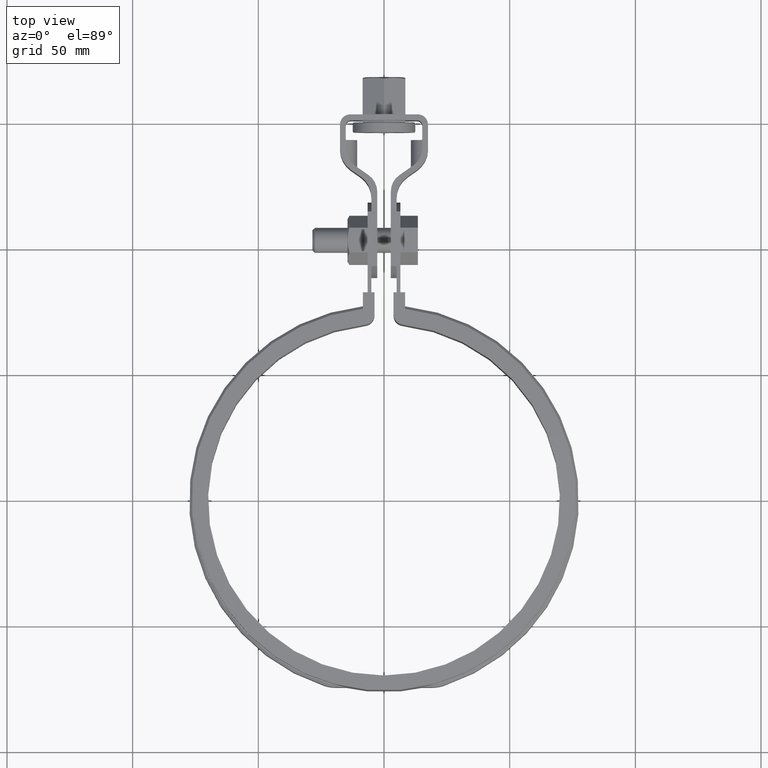
[diagram: clean part render]
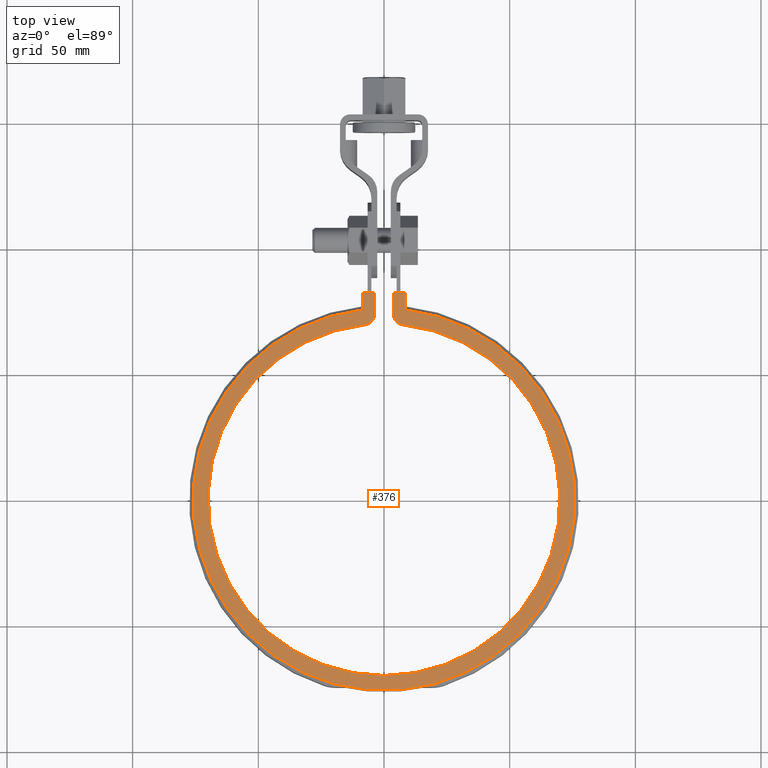
[diagram: same view with one face highlighted and labeled with its STEP entity id]
A machine part, top view. The second image highlights one B-rep face of the part: STEP entity #376.
In plain terms, the highlighted planar face has unit normal (0, 0, 1).
Its self-contained STEP definition (entity closure, byte-faithful):
#376 = ADVANCED_FACE( '', ( #625 ), #626, .T. );
#625 = FACE_OUTER_BOUND( '', #1760, .T. );
#626 = PLANE( '', #1761 );
#1760 = EDGE_LOOP( '', ( #4041, #4042, #4043, #4044, #4045, #4046, #4047, #4048, #4049, #4050 ) );
#1761 = AXIS2_PLACEMENT_3D( '', #4051, #4052, #4053 );
#4041 = ORIENTED_EDGE( '', *, *, #5046, .T. );
#4042 = ORIENTED_EDGE( '', *, *, #5038, .T. );
#4043 = ORIENTED_EDGE( '', *, *, #5096, .T. );
#4044 = ORIENTED_EDGE( '', *, *, #5107, .T. );
#4045 = ORIENTED_EDGE( '', *, *, #5164, .T. );
#4046 = ORIENTED_EDGE( '', *, *, #5082, .T. );
#4047 = ORIENTED_EDGE( '', *, *, #5165, .T. );
#4048 = ORIENTED_EDGE( '', *, *, #5166, .T. );
#4049 = ORIENTED_EDGE( '', *, *, #5167, .T. );
#4050 = ORIENTED_EDGE( '', *, *, #5168, .T. );
#4051 = CARTESIAN_POINT( '', ( 0.000000000000000, 0.000000000000000, 1.50000000000000 ) );
#4052 = DIRECTION( '', ( 0.000000000000000, 0.000000000000000, 1.00000000000000 ) );
#4053 = DIRECTION( '', ( 0.000000000000000, 1.00000000000000, 0.000000000000000 ) );
#5038 = EDGE_CURVE( '', #5558, #5559, #5560, .T. );
#5046 = EDGE_CURVE( '', #5574, #5558, #5575, .T. );
#5082 = EDGE_CURVE( '', #5637, #5638, #5639, .T. );
#5096 = EDGE_CURVE( '', #5559, #5664, #5666, .T. );
#5107 = EDGE_CURVE( '', #5664, #5685, #5687, .T. );
#5164 = EDGE_CURVE( '', #5685, #5637, #5774, .T. );
#5165 = EDGE_CURVE( '', #5638, #5775, #5776, .T. );
#5166 = EDGE_CURVE( '', #5775, #5777, #5778, .T. );
#5167 = EDGE_CURVE( '', #5777, #5779, #5780, .T. );
#5168 = EDGE_CURVE( '', #5779, #5574, #5781, .T. );
#5558 = VERTEX_POINT( '', #7263 );
#5559 = VERTEX_POINT( '', #7264 );
#5560 = LINE( '', #7265, #7266 );
#5574 = VERTEX_POINT( '', #7287 );
#5575 = LINE( '', #7288, #7289 );
#5637 = VERTEX_POINT( '', #8148 );
#5638 = VERTEX_POINT( '', #8149 );
#5639 = LINE( '', #8150, #8151 );
#5664 = VERTEX_POINT( '', #8192 );
#5666 = LINE( '', #8195, #8196 );
#5685 = VERTEX_POINT( '', #8224 );
#5687 = CIRCLE( '', #8227, 76.0000000000000 );
#5774 = LINE( '', #8452, #8453 );
#5775 = VERTEX_POINT( '', #8454 );
#5776 = LINE( '', #8455, #8456 );
#5777 = VERTEX_POINT( '', #8457 );
#5778 = CIRCLE( '', #8458, 4.00000000000000 );
#5779 = VERTEX_POINT( '', #8459 );
#5780 = CIRCLE( '', #8460, 70.0000000000000 );
#5781 = CIRCLE( '', #8461, 4.00000000000000 );
#7263 = CARTESIAN_POINT( '', ( -3.80000000000000, 82.5000000000000, 1.50000000000000 ) );
#7264 = CARTESIAN_POINT( '', ( -8.40000000000002, 82.5000000000000, 1.50000000000000 ) );
#7265 = CARTESIAN_POINT( '', ( -3.80000000000000, 82.5000000000000, 1.50000000000000 ) );
#7266 = VECTOR( '', #9378, 1000.00000000000 );
#7287 = CARTESIAN_POINT( '', ( -3.80000000000000, 73.5877707231304, 1.50000000000000 ) );
#7288 = CARTESIAN_POINT( '', ( -3.80000000000000, 73.5877707231304, 1.50000000000000 ) );
#7289 = VECTOR( '', #9386, 1000.00000000000 );
#8148 = CARTESIAN_POINT( '', ( 8.39999999999999, 82.5000000000000, 1.50000000000000 ) );
#8149 = CARTESIAN_POINT( '', ( 3.80000000000003, 82.5000000000000, 1.50000000000000 ) );
#8150 = CARTESIAN_POINT( '', ( 8.40000000000002, 82.5000000000000, 1.50000000000000 ) );
#8151 = VECTOR( '', #9406, 1000.00000000000 );
#8192 = CARTESIAN_POINT( '', ( -8.40000000000000, 75.5343630409366, 1.50000000000000 ) );
#8195 = CARTESIAN_POINT( '', ( -8.40000000000000, 82.5000000000000, 1.50000000000000 ) );
#8196 = VECTOR( '', #9418, 1000.00000000000 );
#8224 = CARTESIAN_POINT( '', ( 8.39999999999992, 75.5343630409366, 1.50000000000000 ) );
#8227 = AXIS2_PLACEMENT_3D( '', #9435, #9436, #9437 );
#8452 = CARTESIAN_POINT( '', ( 8.39999999999999, 75.5343630409366, 1.50000000000000 ) );
#8453 = VECTOR( '', #9542, 1000.00000000000 );
#8454 = CARTESIAN_POINT( '', ( 3.80000000000000, 73.5877707231304, 1.50000000000000 ) );
#8455 = CARTESIAN_POINT( '', ( 3.80000000000000, 82.5000000000000, 1.50000000000000 ) );
#8456 = VECTOR( '', #9543, 1000.00000000000 );
#8457 = CARTESIAN_POINT( '', ( 7.37837837837830, 69.6100533867449, 1.50000000000000 ) );
#8458 = AXIS2_PLACEMENT_3D( '', #9544, #9545, #9546 );
#8459 = CARTESIAN_POINT( '', ( -7.37837837837833, 69.6100533867449, 1.50000000000000 ) );
#8460 = AXIS2_PLACEMENT_3D( '', #9547, #9548, #9549 );
#8461 = AXIS2_PLACEMENT_3D( '', #9550, #9551, #9552 );
#9378 = DIRECTION( '', ( -1.00000000000000, 0.000000000000000, 0.000000000000000 ) );
#9386 = DIRECTION( '', ( 6.00481203222741E-017, 1.00000000000000, 0.000000000000000 ) );
#9406 = DIRECTION( '', ( -1.00000000000000, 0.000000000000000, 0.000000000000000 ) );
#9418 = DIRECTION( '', ( -6.67201336914157E-017, -1.00000000000000, 0.000000000000000 ) );
#9435 = CARTESIAN_POINT( '', ( 0.000000000000000, 0.000000000000000, 1.50000000000000 ) );
#9436 = DIRECTION( '', ( 0.000000000000000, 0.000000000000000, 1.00000000000000 ) );
#9437 = DIRECTION( '', ( 1.00000000000000, 0.000000000000000, 0.000000000000000 ) );
#9542 = DIRECTION( '', ( 6.67201336914157E-017, 1.00000000000000, 0.000000000000000 ) );
#9543 = DIRECTION( '', ( -6.00481203222741E-017, -1.00000000000000, 0.000000000000000 ) );
#9544 = CARTESIAN_POINT( '', ( 7.80000000000000, 73.5877707231303, 1.50000000000000 ) );
#9545 = DIRECTION( '', ( 0.000000000000000, 0.000000000000000, 1.00000000000000 ) );
#9546 = DIRECTION( '', ( -1.00000000000000, 0.000000000000000, 0.000000000000000 ) );
#9547 = CARTESIAN_POINT( '', ( 0.000000000000000, 0.000000000000000, 1.50000000000000 ) );
#9548 = DIRECTION( '', ( 0.000000000000000, 0.000000000000000, -1.00000000000000 ) );
#9549 = DIRECTION( '', ( 1.00000000000000, 0.000000000000000, 0.000000000000000 ) );
#9550 = CARTESIAN_POINT( '', ( -7.80000000000000, 73.5877707231304, 1.50000000000000 ) );
#9551 = DIRECTION( '', ( 0.000000000000000, 0.000000000000000, 1.00000000000000 ) );
#9552 = DIRECTION( '', ( 1.00000000000000, 0.000000000000000, 0.000000000000000 ) );